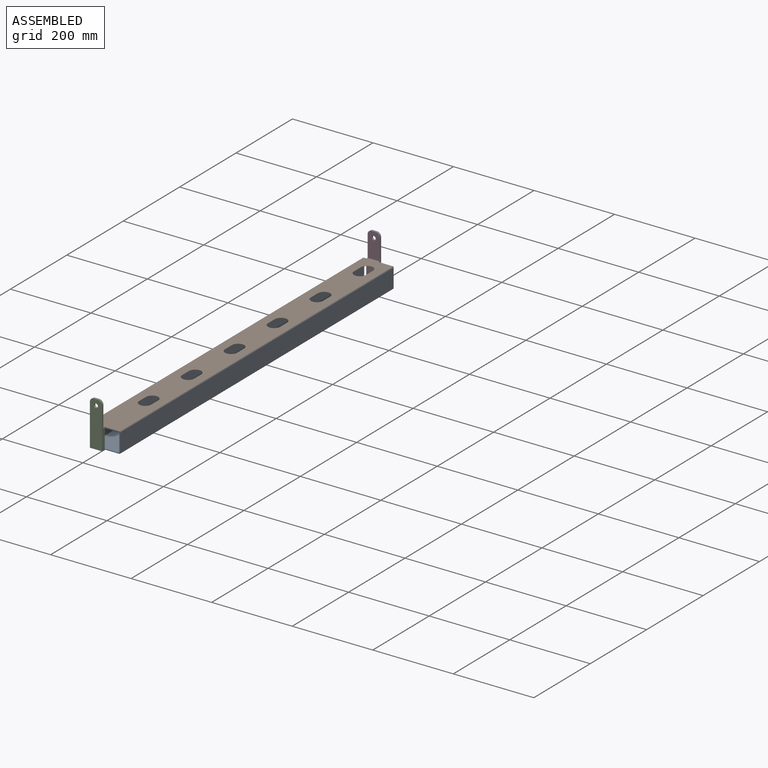
[diagram: assembled view]
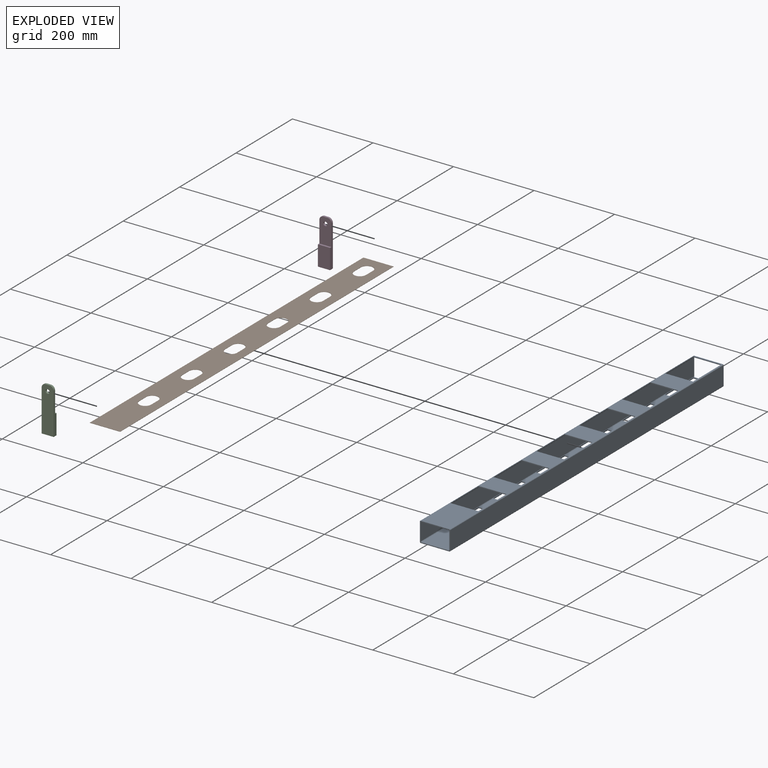
[diagram: exploded view]
GUIDED TOUR — MATED ASSEMBLY (Onshape document 9bb10a34d3f4bb13df1294ee, AutoMate assembly 9bb10a34d3f4bb13df1294ee_e14ca980945054dde82da55b_e49291f0bf9ba05b298b1c8b_default)

This assembly has 4 components, labeled P0..P3 below (a component is one placed occurrence of a part; the same part can appear more than once), held together by 3 mates. A mate is a constraint between two components; its type names the relative motion it leaves free:
  FASTENED — locks the two components together rigidly (no relative motion).
Axis/direction vectors are unit vectors and 'through' points are millimeter coordinates, both in the assembly's world frame.

MATES
  1. FASTENED "Fastened 1": P1 <-> P0, direction (-1.000, 0.000, 0.000) through (-180.80, -548.81, -4.32) mm
  2. FASTENED "Fastened 2": P2 <-> P0, direction (-1.000, 0.000, 0.000) through (-196.33, -548.81, -54.32) mm
  3. FASTENED "Fastened 3": P3 <-> P0, direction (1.000, 0.000, 0.000) through (-196.33, 421.19, -54.32) mm

ASSEMBLY ORDER
  1. P1 — the base component [order verified]
  2. P0 [order verified]
  3. P2 [order verified]
  4. P3 [order verified]
Order-tag legend:
  [order verified] — this step's position reverses a verified removal order: the component was checked to insert without passing through the ones already placed.

Of the 4 components, 4 carry the full construction recipe — the FeatureScript program that regenerates the part's solid from scratch; the rest are supplied as boundary geometry only.
Each toured component is shown spotlighted twice — in the assembled view, then in the exploded view, where a leader line traces a displaced component back to its assembled socket (saturated green if recipe-attached, orange if geometry-only; every other component desaturated gray) — followed by its recipe or geometry summary and the mates that hold it.
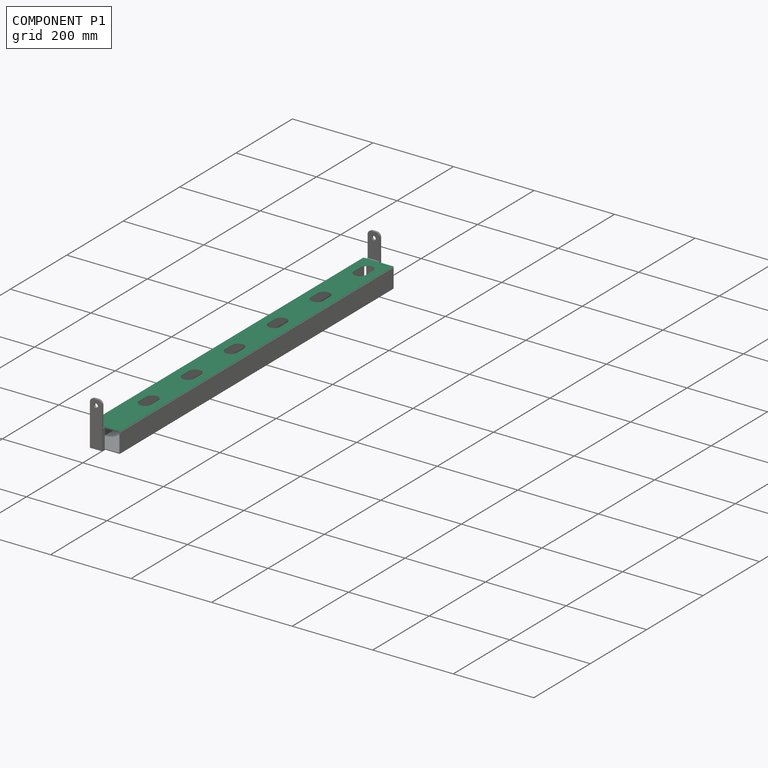
[diagram: component P1 — assembled]
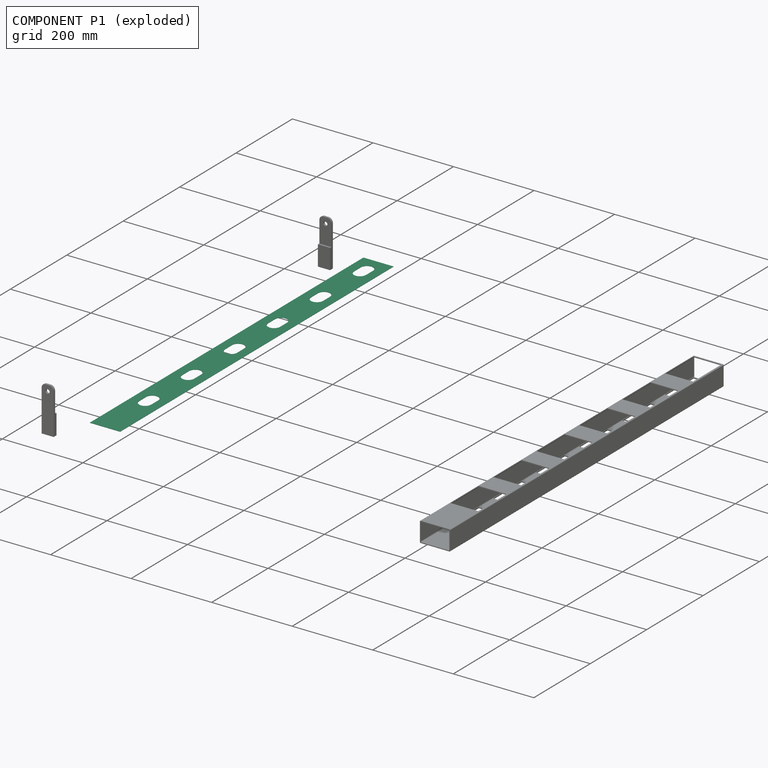
[diagram: component P1 — exploded]
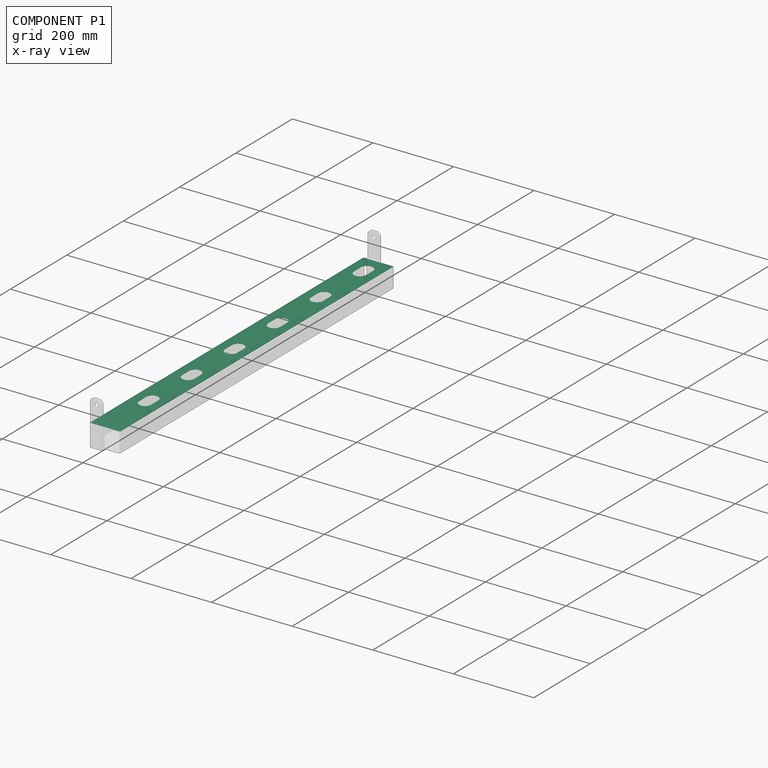
[diagram: component P1 — x-ray view]
COMPONENT P1 — recipe-attached (CADFS 00131148, mesh-verified: the recipe's output STEP matches this component's geometry to below the mesh-comparison resolution (tessellation chordal tolerance ~1.46 mm)).
Held by: FASTENED mate "Fastened 1" to P0.
Construction recipe (FeatureScript — the CAD program that rebuilds this solid; sketch coordinates are in the units given by the * unit suffixes, e.g. mm):

FeatureScript 1511;
import(path : "onshape/std/geometry.fs", version : "1511.0");
import(path : "onshape/std/common.fs", version : "1511.0");
const mm = millimeter;
const VERTEX = EntityType.VERTEX;
const EDGE = EntityType.EDGE;
const FACE = EntityType.FACE;
const BODY = EntityType.BODY;
function v(x, y){return vector(x, y);}
function OD(order){return orderDisambiguation(order);}
function OSD(set){return originalSetDisambiguation(set);}
function TD(topology){return topologyDisambiguation(topology);}
function TDD(query){return trueDependencyDisambiguation(query);}
function sQuery(a, b, c) {return sketchEntityQuery(a, b, c);}

annotation { "Feature Type Name" : "Feature", "Feature Type Description" : "" }
export const myFeature = defineFeature(function(context is Context, id is Id, definition is map)
    precondition{}
    {
        {
            var Q0;
            Q0=qCreatedBy(makeId("Top.planeOp"),FACE);
            var sketch = newSketch(context, id + "F0", { "sketchPlane" : qUnion([Q0])});
            skLineSegment(sketch, "E0.bottom", {"start": v(-88.8, -573.42) * mm, "end": v(-163.8, -573.42) * mm});
            skLineSegment(sketch, "E0.top", {"start": v(-88.8, 396.58) * mm, "end": v(-163.8, 396.58) * mm});
            skLineSegment(sketch, "E0.left", {"start": v(-88.8, -573.42) * mm, "end": v(-88.8, 396.58) * mm});
            skLineSegment(sketch, "E0.right", {"start": v(-163.8, -573.42) * mm, "end": v(-163.8, 396.58) * mm});
            skPoint(sketch, "E1.middle", {"position": v(148.88, -338.15) * mm});
            skArc(sketch, "E2", {"start": v(-141.3, -430.87) * mm, "mid": v(-126.3, -445.87) * mm, "end": v(-111.3, -430.87) * mm});
            skArc(sketch, "E3.trimOffspring", {"start": v(-111.3, -405.87) * mm, "mid": v(-126.3, -390.87) * mm, "end": v(-141.3, -405.87) * mm});
            skLineSegment(sketch, "E4", {"start": v(-141.3, -405.87) * mm, "end": v(-141.3, -430.87) * mm});
            skLineSegment(sketch, "E5", {"start": v(-111.3, -405.87) * mm, "end": v(-111.3, -430.87) * mm});
            skLineSegment(sketch, "E6", {"start": v(-126.3, -573.42) * mm, "end": v(-126.3, 396.58) * mm, "construction": true});
            skArc(sketch, "E7", {"start": v(-141.3, -126.25) * mm, "mid": v(-126.3, -141.25) * mm, "end": v(-111.3, -126.25) * mm});
            skArc(sketch, "E8.trimOffspring", {"start": v(-111.3, -101.25) * mm, "mid": v(-126.3, -86.25) * mm, "end": v(-141.3, -101.25) * mm});
            skLineSegment(sketch, "E9", {"start": v(-141.3, -101.25) * mm, "end": v(-141.3, -126.25) * mm});
            skLineSegment(sketch, "E10", {"start": v(-111.3, -101.25) * mm, "end": v(-111.3, -126.25) * mm});
            skArc(sketch, "E11", {"start": v(-141.3, -278.56) * mm, "mid": v(-126.3, -293.56) * mm, "end": v(-111.3, -278.56) * mm});
            skArc(sketch, "E12.trimOffspring", {"start": v(-111.3, -253.56) * mm, "mid": v(-126.3, -238.56) * mm, "end": v(-141.3, -253.56) * mm});
            skLineSegment(sketch, "E13", {"start": v(-141.3, -253.56) * mm, "end": v(-141.3, -278.56) * mm});
            skLineSegment(sketch, "E14", {"start": v(-111.3, -253.56) * mm, "end": v(-111.3, -278.56) * mm});
            skPoint(sketch, "E15.middle", {"position": v(216.86, -20.65) * mm});
            skArc(sketch, "E16", {"start": v(-141.3, 178.37) * mm, "mid": v(-126.3, 163.37) * mm, "end": v(-111.3, 178.37) * mm});
            skArc(sketch, "E17.trimOffspring", {"start": v(-111.3, 203.37) * mm, "mid": v(-126.3, 218.37) * mm, "end": v(-141.3, 203.37) * mm});
            skLineSegment(sketch, "E18", {"start": v(-141.3, 203.37) * mm, "end": v(-141.3, 178.37) * mm});
            skLineSegment(sketch, "E19", {"start": v(-111.3, 203.37) * mm, "end": v(-111.3, 178.37) * mm});
            skArc(sketch, "E20", {"start": v(-141.3, 26.06) * mm, "mid": v(-126.3, 11.06) * mm, "end": v(-111.3, 26.06) * mm});
            skArc(sketch, "E21.trimOffspring", {"start": v(-111.3, 51.06) * mm, "mid": v(-126.3, 66.06) * mm, "end": v(-141.3, 51.06) * mm});
            skLineSegment(sketch, "E22", {"start": v(-141.3, 51.06) * mm, "end": v(-141.3, 26.06) * mm});
            skLineSegment(sketch, "E23", {"start": v(-111.3, 51.06) * mm, "end": v(-111.3, 26.06) * mm});
            skPoint(sketch, "E24.middle", {"position": v(174.18, -74.29) * mm});
            skArc(sketch, "E25", {"start": v(-141.3, 330.68) * mm, "mid": v(-126.3, 315.68) * mm, "end": v(-111.3, 330.68) * mm});
            skArc(sketch, "E26.trimOffspring", {"start": v(-111.3, 355.68) * mm, "mid": v(-126.3, 370.68) * mm, "end": v(-141.3, 355.68) * mm});
            skLineSegment(sketch, "E27", {"start": v(-141.3, 355.68) * mm, "end": v(-141.3, 330.68) * mm});
            skLineSegment(sketch, "E28", {"start": v(-111.3, 355.68) * mm, "end": v(-111.3, 330.68) * mm});
            skSolve(sketch);
        }
        {
            var Q0;
            Q0=qSketchRegion(id+"F0",true);
            var Q1;
            Q1=makeQuery(id+"F0.imprint","IMPRINT",FACE,{"disambiguationData":[TD([[makeQuery(id+"F0.imprint","IMPRINT",EDGE,{"derivedFrom":sQuery(id+"F0.wireOp",EDGE,"E0.bottom")}),-1.0]])]});
            extrude(context, id + "F1", {"entities" : qUnion([Q0, Q1]), "depth" : 0.65 * mm});
        }
    });
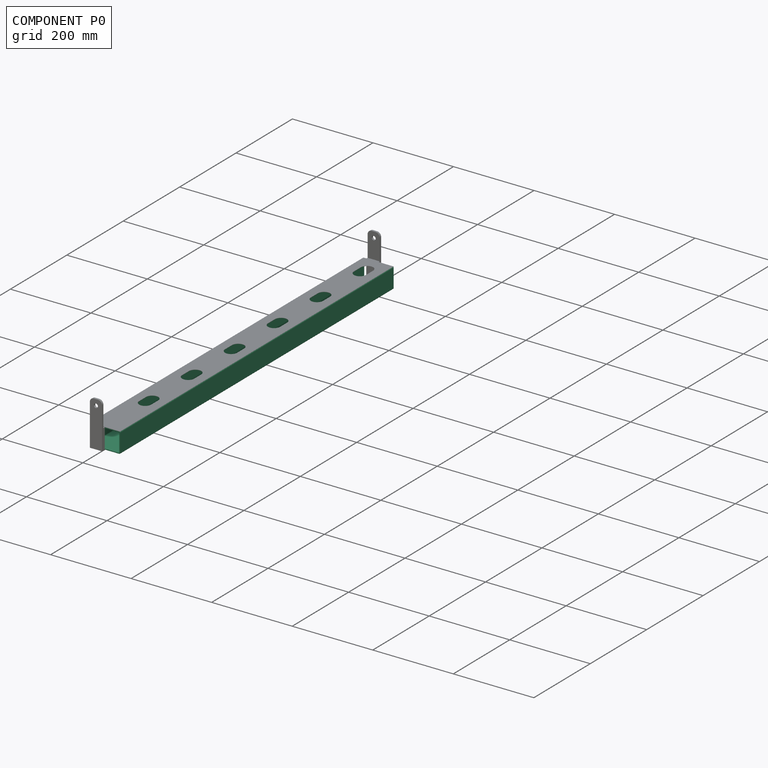
[diagram: component P0 — assembled]
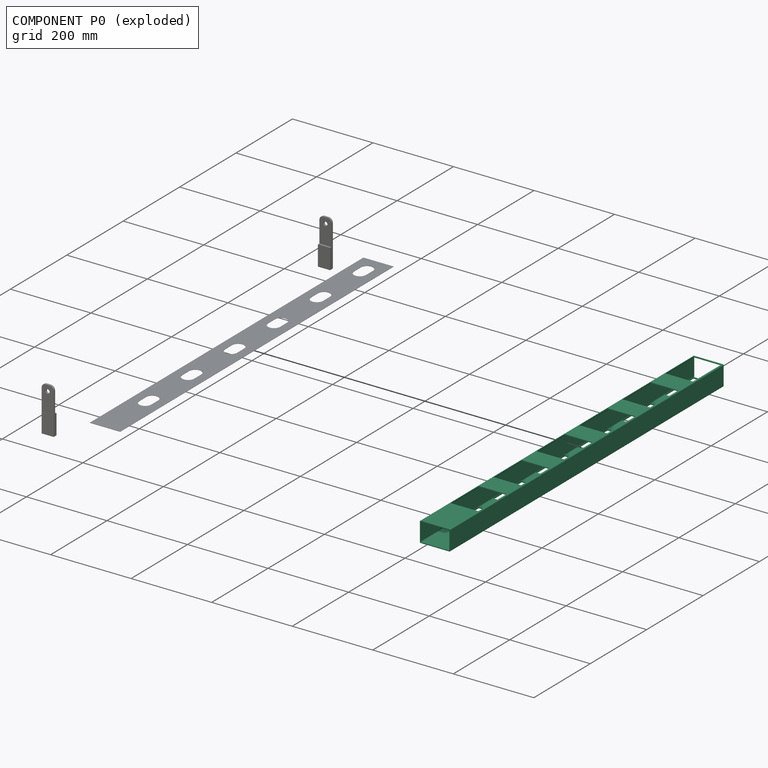
[diagram: component P0 — exploded]
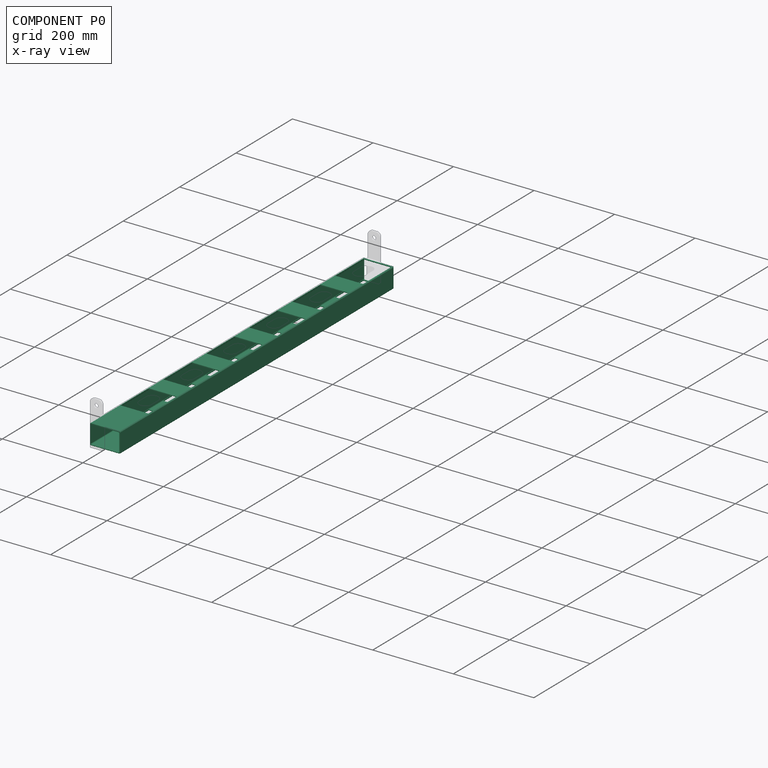
[diagram: component P0 — x-ray view]
COMPONENT P0 — recipe-attached (CADFS 00131146, mesh-verified: the recipe's output STEP matches this component's geometry to below the mesh-comparison resolution (tessellation chordal tolerance ~1.46 mm)).
Held by: FASTENED mate "Fastened 1" to P1; FASTENED mate "Fastened 2" to P2; FASTENED mate "Fastened 3" to P3.
Construction recipe (FeatureScript — the CAD program that rebuilds this solid; sketch coordinates are in the units given by the * unit suffixes, e.g. mm):

FeatureScript 1511;
import(path : "onshape/std/geometry.fs", version : "1511.0");
import(path : "onshape/std/common.fs", version : "1511.0");
const mm = millimeter;
const VERTEX = EntityType.VERTEX;
const EDGE = EntityType.EDGE;
const FACE = EntityType.FACE;
const BODY = EntityType.BODY;
function v(x, y){return vector(x, y);}
function OD(order){return orderDisambiguation(order);}
function OSD(set){return originalSetDisambiguation(set);}
function TD(topology){return topologyDisambiguation(topology);}
function TDD(query){return trueDependencyDisambiguation(query);}
function sQuery(a, b, c) {return sketchEntityQuery(a, b, c);}

annotation { "Feature Type Name" : "Feature", "Feature Type Description" : "" }
export const myFeature = defineFeature(function(context is Context, id is Id, definition is map)
    precondition{}
    {
        {
            var Q0;
            Q0=qCreatedBy(makeId("Front.planeOp"),FACE);
            var sketch = newSketch(context, id + "F0", { "sketchPlane" : qUnion([Q0])});
            skLineSegment(sketch, "E0.bottom", {"start": v(37.5, -25) * mm, "end": v(-37.5, -25) * mm});
            skLineSegment(sketch, "E0.top", {"start": v(37.5, 25) * mm, "end": v(-37.5, 25) * mm});
            skLineSegment(sketch, "E0.left", {"start": v(37.5, -25) * mm, "end": v(37.5, 25) * mm});
            skLineSegment(sketch, "E0.right", {"start": v(-37.5, -25) * mm, "end": v(-37.5, 25) * mm});
            skPoint(sketch, "E0.middle", {"position": v(0, 0) * mm});
            skLineSegment(sketch, "E1.bottom", {"start": v(35.5, -23) * mm, "end": v(-35.5, -23) * mm});
            skLineSegment(sketch, "E1.top", {"start": v(35.5, 23) * mm, "end": v(-35.5, 23) * mm});
            skLineSegment(sketch, "E1.left", {"start": v(35.5, -23) * mm, "end": v(35.5, 23) * mm});
            skLineSegment(sketch, "E1.right", {"start": v(-35.5, -23) * mm, "end": v(-35.5, 23) * mm});
            skSolve(sketch);
        }
        {
            var Q0;
            Q0=makeQuery(id+"F0.imprint","IMPRINT",FACE,{"disambiguationData":[TD([[makeQuery(id+"F0.imprint","IMPRINT",EDGE,{"derivedFrom":sQuery(id+"F0.wireOp",EDGE,"E0.bottom")}),-1.0]])]});
            extrude(context, id + "F1", {"entities" : qUnion([Q0]), "depth" : 970 * mm});
        }
        {
            var Q0;
            Q0=makeQuery(id+"F1.opExtrude","SWEPT_FACE",FACE,{"disambiguationData":[OSD([sQuery(id+"F0.wireOp",EDGE,"E0.top")])]});
            var sketch = newSketch(context, id + "F2", { "sketchPlane" : qUnion([Q0])});
            skLineSegment(sketch, "E2.bottom", {"start": v(34.03, -864.95) * mm, "end": v(-34.97, -864.95) * mm});
            skLineSegment(sketch, "E2.top", {"start": v(34.03, -764.95) * mm, "end": v(-34.97, -764.95) * mm});
            skLineSegment(sketch, "E2.left", {"start": v(34.03, -864.95) * mm, "end": v(34.03, -764.95) * mm});
            skLineSegment(sketch, "E2.right", {"start": v(-34.97, -864.95) * mm, "end": v(-34.97, -764.95) * mm});
            skPoint(sketch, "E2.middle", {"position": v(0, -485) * mm});
            skPoint(sketch, "E2.middle.positionSnap0", {"position": v(-37.5, -485) * mm});
            skPoint(sketch, "E2.centerSnap0", {"position": v(-37.5, -485) * mm});
            skLineSegment(sketch, "E3.bottom", {"start": v(34.03, -712.64) * mm, "end": v(-34.97, -712.64) * mm});
            skLineSegment(sketch, "E3.top", {"start": v(34.03, -612.64) * mm, "end": v(-34.97, -612.64) * mm});
            skLineSegment(sketch, "E3.left", {"start": v(34.03, -712.64) * mm, "end": v(34.03, -612.64) * mm});
            skLineSegment(sketch, "E3.right", {"start": v(-34.97, -712.64) * mm, "end": v(-34.97, -612.64) * mm});
            skLineSegment(sketch, "E4.bottom", {"start": v(34.03, -560.33) * mm, "end": v(-34.97, -560.33) * mm});
            skLineSegment(sketch, "E4.top", {"start": v(34.03, -460.33) * mm, "end": v(-34.97, -460.33) * mm});
            skLineSegment(sketch, "E4.left", {"start": v(34.03, -560.33) * mm, "end": v(34.03, -460.33) * mm});
            skLineSegment(sketch, "E4.right", {"start": v(-34.97, -560.33) * mm, "end": v(-34.97, -460.33) * mm});
            skLineSegment(sketch, "E5.bottom", {"start": v(34.03, -408.02) * mm, "end": v(-34.97, -408.02) * mm});
            skLineSegment(sketch, "E5.top", {"start": v(34.03, -308.02) * mm, "end": v(-34.97, -308.02) * mm});
            skLineSegment(sketch, "E5.left", {"start": v(34.03, -408.02) * mm, "end": v(34.03, -308.02) * mm});
            skLineSegment(sketch, "E5.right", {"start": v(-34.97, -408.02) * mm, "end": v(-34.97, -308.02) * mm});
            skPoint(sketch, "E5.middle", {"position": v(0.05, -26.06) * mm});
            skPoint(sketch, "E5.middle.positionSnap0", {"position": v(-37.45, -26.06) * mm});
            skPoint(sketch, "E5.centerSnap0", {"position": v(-37.45, -26.06) * mm});
            skLineSegment(sketch, "E6.bottom", {"start": v(34.03, -255.71) * mm, "end": v(-34.97, -255.71) * mm});
            skLineSegment(sketch, "E6.top", {"start": v(34.03, -155.71) * mm, "end": v(-34.97, -155.71) * mm});
            skLineSegment(sketch, "E6.left", {"start": v(34.03, -255.71) * mm, "end": v(34.03, -155.71) * mm});
            skLineSegment(sketch, "E6.right", {"start": v(-34.97, -255.71) * mm, "end": v(-34.97, -155.71) * mm});
            skLineSegment(sketch, "E7.bottom", {"start": v(34.03, -103.4) * mm, "end": v(-34.97, -103.4) * mm});
            skLineSegment(sketch, "E7.top", {"start": v(34.03, -3.4) * mm, "end": v(-34.97, -3.4) * mm});
            skLineSegment(sketch, "E7.left", {"start": v(34.03, -103.4) * mm, "end": v(34.03, -3.4) * mm});
            skLineSegment(sketch, "E7.right", {"start": v(-34.97, -103.4) * mm, "end": v(-34.97, -3.4) * mm});
            skSolve(sketch);
        }
        {
            var Q0;
            Q0=makeQuery(id+"F1.opExtrude","SWEPT_EDGE",EDGE,{"disambiguationData":[OSD([sQuery(id+"F0.wireOp",EDGE,"E0.top"),sQuery(id+"F0.wireOp",EDGE,"E0.right")])]});
            var Q1;
            Q1=makeQuery(id+"F1.opExtrude","SWEPT_EDGE",EDGE,{"disambiguationData":[OSD([sQuery(id+"F0.wireOp",EDGE,"E0.top"),sQuery(id+"F0.wireOp",EDGE,"E0.left")])]});
            var Q2;
            Q2=makeQuery(id+"F1.opExtrude","SWEPT_EDGE",EDGE,{"disambiguationData":[OSD([sQuery(id+"F0.wireOp",EDGE,"E0.bottom"),sQuery(id+"F0.wireOp",EDGE,"E0.left")])]});
            var Q3;
            Q3=makeQuery(id+"F1.opExtrude","SWEPT_EDGE",EDGE,{"disambiguationData":[OSD([sQuery(id+"F0.wireOp",EDGE,"E0.bottom"),sQuery(id+"F0.wireOp",EDGE,"E0.right")])]});
            fillet(context, id + "F3", {"entities" : qUnion([Q0, Q1, Q2, Q3]), "radius" : 2 * mm, "tangentPropagation" : true, "allowEdgeOverflow" : false});
        }
        {
            var Q0;
            Q0=makeQuery(id+"F1.opExtrude","SWEPT_EDGE",EDGE,{"disambiguationData":[OSD([sQuery(id+"F0.wireOp",EDGE,"E1.top"),sQuery(id+"F0.wireOp",EDGE,"E1.right")])]});
            var Q1;
            Q1=makeQuery(id+"F1.opExtrude","SWEPT_EDGE",EDGE,{"disambiguationData":[OSD([sQuery(id+"F0.wireOp",EDGE,"E1.bottom"),sQuery(id+"F0.wireOp",EDGE,"E1.right")])]});
            var Q2;
            Q2=makeQuery(id+"F1.opExtrude","SWEPT_EDGE",EDGE,{"disambiguationData":[OSD([sQuery(id+"F0.wireOp",EDGE,"E1.bottom"),sQuery(id+"F0.wireOp",EDGE,"E1.left")])]});
            var Q3;
            Q3=makeQuery(id+"F1.opExtrude","SWEPT_EDGE",EDGE,{"disambiguationData":[OSD([sQuery(id+"F0.wireOp",EDGE,"E1.top"),sQuery(id+"F0.wireOp",EDGE,"E1.left")])]});
            fillet(context, id + "F4", {"entities" : qUnion([Q0, Q1, Q2, Q3]), "radius" : 2 * mm, "tangentPropagation" : true, "allowEdgeOverflow" : false});
        }
        {
            var Q0;
            Q0=qSketchRegion(id+"F2",true);
            extrude(context, id + "F5", {"entities" : qUnion([Q0]), "operationType" : NewBodyOperationType.REMOVE, "oppositeDirection" : true, "depth" : 60 * mm});
        }
    });
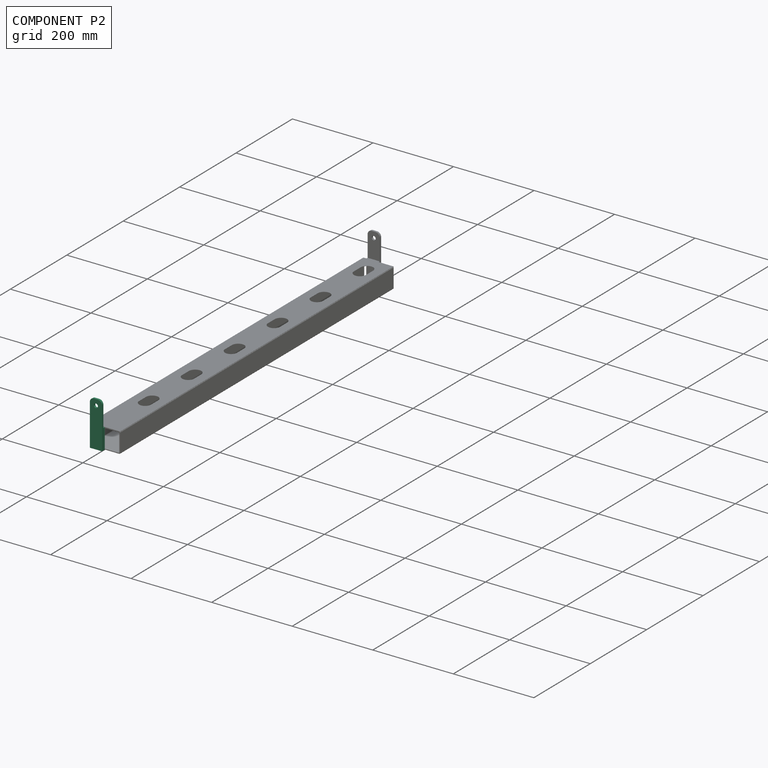
[diagram: component P2 — assembled]
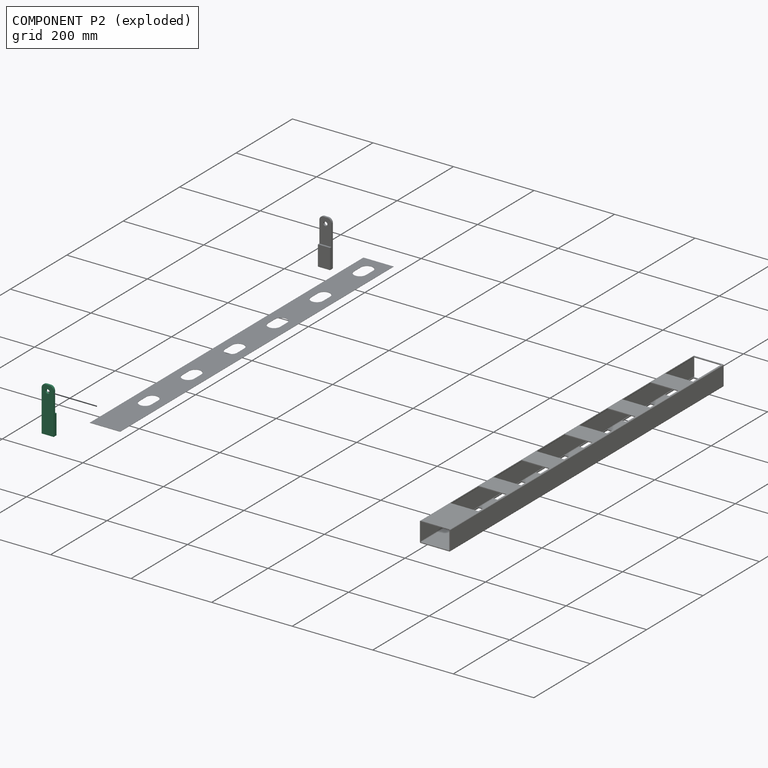
[diagram: component P2 — exploded]
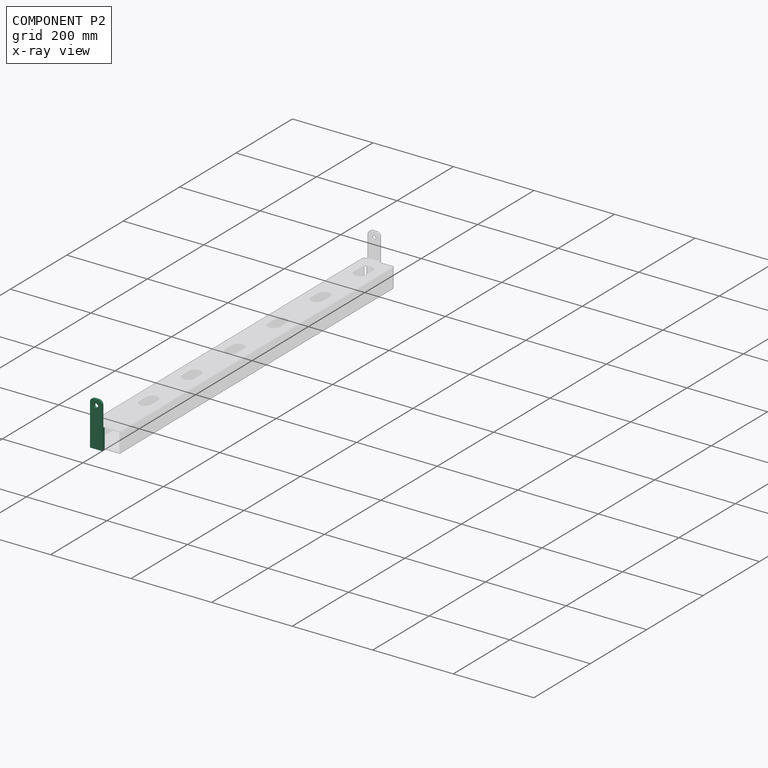
[diagram: component P2 — x-ray view]
COMPONENT P2 — recipe-attached (CADFS 00131150, mesh-verified: the recipe's output STEP matches this component's geometry to below the mesh-comparison resolution (tessellation chordal tolerance ~0.176 mm)).
Held by: FASTENED mate "Fastened 2" to P0.
Construction recipe (FeatureScript — the CAD program that rebuilds this solid; sketch coordinates are in the units given by the * unit suffixes, e.g. mm):

FeatureScript 1511;
import(path : "onshape/std/geometry.fs", version : "1511.0");
import(path : "onshape/std/common.fs", version : "1511.0");
const mm = millimeter;
const VERTEX = EntityType.VERTEX;
const EDGE = EntityType.EDGE;
const FACE = EntityType.FACE;
const BODY = EntityType.BODY;
function v(x, y){return vector(x, y);}
function OD(order){return orderDisambiguation(order);}
function OSD(set){return originalSetDisambiguation(set);}
function TD(topology){return topologyDisambiguation(topology);}
function TDD(query){return trueDependencyDisambiguation(query);}
function sQuery(a, b, c) {return sketchEntityQuery(a, b, c);}

annotation { "Feature Type Name" : "Feature", "Feature Type Description" : "" }
export const myFeature = defineFeature(function(context is Context, id is Id, definition is map)
    precondition{}
    {
        {
            var Q0;
            Q0=qCreatedBy(makeId("Front.planeOp"),FACE);
            var sketch = newSketch(context, id + "F0", { "sketchPlane" : qUnion([Q0])});
            skLineSegment(sketch, "E0.bottom", {"start": v(15, 56.54) * mm, "end": v(-15, 56.54) * mm});
            skLineSegment(sketch, "E0.top", {"start": v(15, -56.54) * mm, "end": v(-15, -56.54) * mm});
            skLineSegment(sketch, "E0.left", {"start": v(15, 56.54) * mm, "end": v(15, -56.54) * mm});
            skLineSegment(sketch, "E0.right", {"start": v(-15, 56.54) * mm, "end": v(-15, -56.54) * mm});
            skPoint(sketch, "E0.middle", {"position": v(0, 0) * mm});
            skCircle(sketch, "E1", {"center": v(0, 41.54) * mm, "radius": 5 * mm});
            skSolve(sketch);
        }
        {
            var Q0;
            Q0=makeQuery(id+"F0.imprint","IMPRINT",FACE,{"disambiguationData":[TD([[makeQuery(id+"F0.imprint","IMPRINT",EDGE,{"derivedFrom":sQuery(id+"F0.wireOp",EDGE,"E0.bottom")}),1.0]])]});
            extrude(context, id + "F1", {"entities" : qUnion([Q0]), "depth" : 5 * mm});
        }
        {
            var Q0;
            Q0=makeQuery(id+"F1.opExtrude","SWEPT_EDGE",EDGE,{"disambiguationData":[OSD([sQuery(id+"F0.wireOp",EDGE,"E0.bottom"),sQuery(id+"F0.wireOp",EDGE,"E0.left")])]});
            var Q1;
            Q1=makeQuery(id+"F1.opExtrude","SWEPT_EDGE",EDGE,{"disambiguationData":[OSD([sQuery(id+"F0.wireOp",EDGE,"E0.bottom"),sQuery(id+"F0.wireOp",EDGE,"E0.right")])]});
            fillet(context, id + "F2", {"entities" : qUnion([Q0, Q1]), "radius" : 10 * mm, "tangentPropagation" : true, "allowEdgeOverflow" : false});
        }
        {
            var Q0;
            Q0=makeQuery(id+"F1.opExtrude","CAP_FACE",FACE,{"disambiguationData":[OSD([sQuery(id+"F0.wireOp",EDGE,"E0.bottom"),sQuery(id+"F0.wireOp",EDGE,"E0.top"),sQuery(id+"F0.wireOp",EDGE,"E0.left"),sQuery(id+"F0.wireOp",EDGE,"E0.right"),sQuery(id+"F0.wireOp",EDGE,"E1")])],"isStart":true});
            var sketch = newSketch(context, id + "F3", { "sketchPlane" : qUnion([Q0])});
            skLineSegment(sketch, "E2.bottom", {"start": v(-15, -56.54) * mm, "end": v(15, -56.54) * mm});
            skLineSegment(sketch, "E2.top", {"start": v(-15, -6.54) * mm, "end": v(15, -6.54) * mm});
            skLineSegment(sketch, "E2.left", {"start": v(-15, -56.54) * mm, "end": v(-15, -6.54) * mm});
            skLineSegment(sketch, "E2.right", {"start": v(15, -56.54) * mm, "end": v(15, -6.54) * mm});
            skSolve(sketch);
        }
        {
            var Q0;
            Q0=makeQuery(id+"F3.imprint","IMPRINT",FACE,{"disambiguationData":[TD([[makeQuery(id+"F3.imprint","IMPRINT",EDGE,{"derivedFrom":sQuery(id+"F3.wireOp",EDGE,"E2.bottom")}),1.0]])]});
            extrude(context, id + "F4", {"entities" : qUnion([Q0]), "operationType" : NewBodyOperationType.ADD, "depth" : 5 * mm});
        }
    });
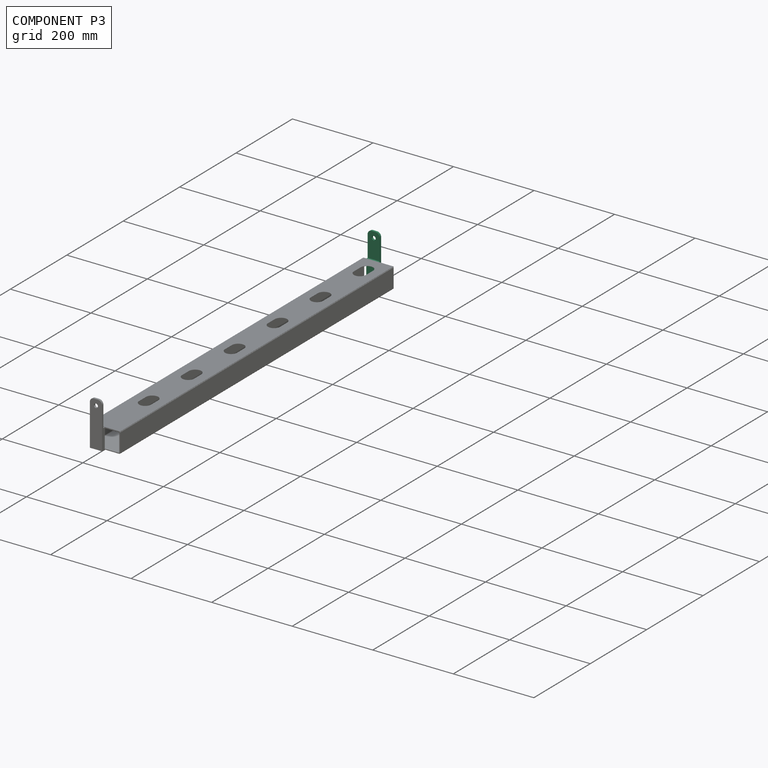
[diagram: component P3 — assembled]
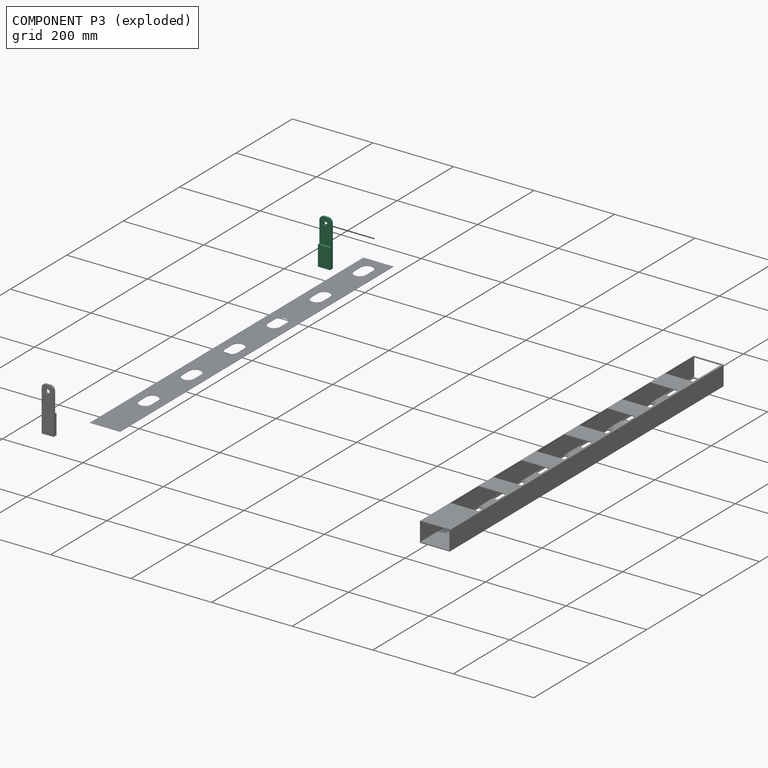
[diagram: component P3 — exploded]
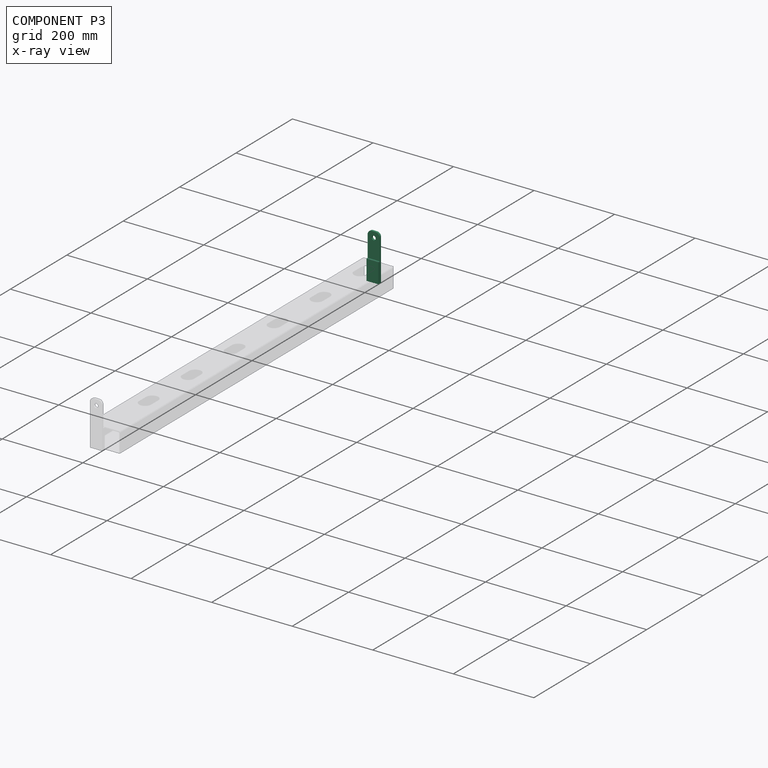
[diagram: component P3 — x-ray view]
COMPONENT P3 — same part as P2 (CADFS 00131150); its construction recipe is shown at P2.
Held by: FASTENED mate "Fastened 3" to P0.
PROVENANCE & LICENSES
Assembly (occurrences, transforms, mates, per-part STEP geometry): AutoMate dataset, Zenodo record 7776208, CC0.
Construction recipes: CADFS (HuggingFace VladPyatov/CADFS, CC-BY-4.0, layered over the ABC dataset), FeatureScript reconstruction programs keyed by ABC model id.
Join: ABC meta listings map ABC model id -> Onshape documentId; within a shared document, parts are matched by geometric signature (bounding-box dims + volume at 0.1% relative tolerance, exact B-rep face/solid counts).
Verification: 4 of this assembly's 4 components carry a recipe attachment, and every attachment is mesh-verified: the CADFS STEP and the AutoMate member STEP were compared as meshes in their shared local frame (symmetric sampled-point-to-mesh distance); worst across the 4 attachments: below the mesh-comparison resolution (tessellation chordal tolerance ~1.46 mm) on a 974 mm part.
Renders: orthographic iso camera (az 35 / el 25); the floor grid conveys scale (grid pitch printed in each image; no ruler). In the exploded view each component is displaced by its stored offset vector: the offsets alone carry the explosion direction (mate normal/axis signs are not orientation cues and do not encode it), and separation distances are assigned per mate-chain, not proportionally to assembly-order depth.
